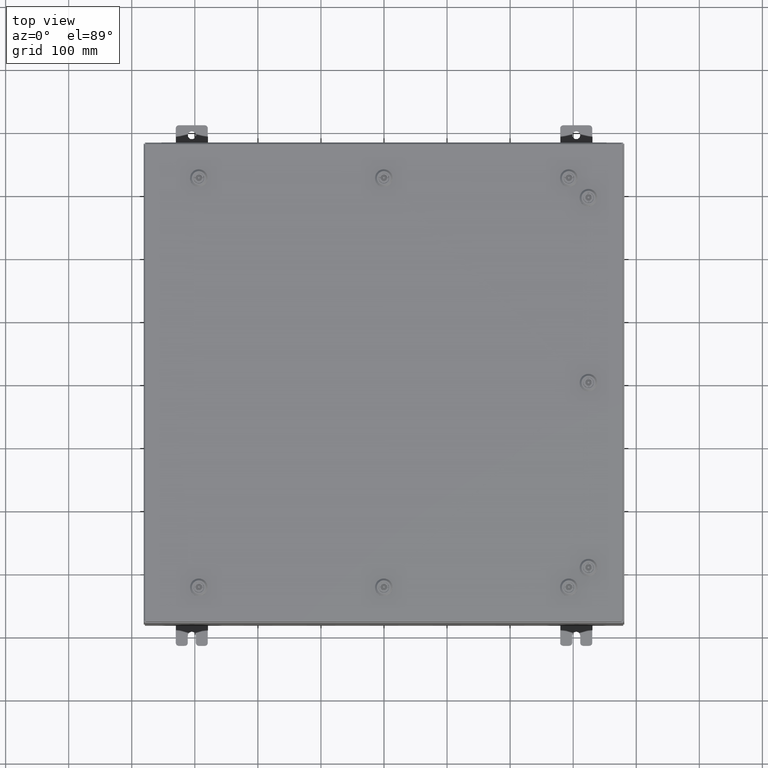
[diagram: clean part render]
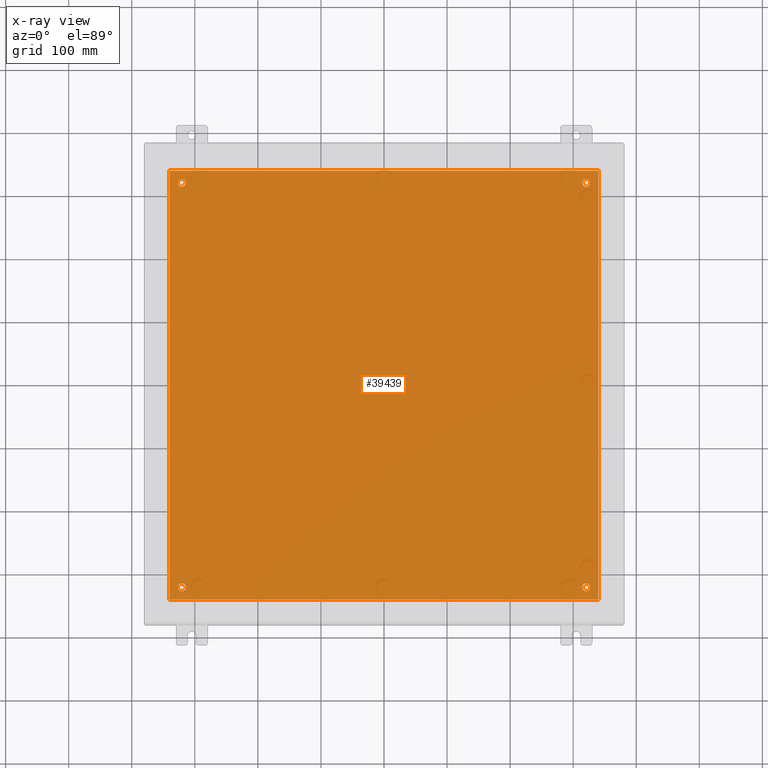
[diagram: x-ray — body ghosted, one internal face saturated and labeled with its STEP entity id]
A machine part, top view, then the same camera in x-ray: the body is ghosted and one INTERNAL B-rep face — a face not visible from any outside direction — is saturated and labeled: STEP entity #39439.
In plain terms, the highlighted planar face has unit normal (0, 0, -1).
Its self-contained STEP definition (entity closure, byte-faithful):
#556 = AXIS2_PLACEMENT_3D ( 'NONE', #42656, #12399, #47770 ) ;
#614 = EDGE_CURVE ( 'NONE', #28975, #15425, #2754, .T. ) ;
#1179 = CARTESIAN_POINT ( 'NONE',  ( 12.87500000000000500, 12.62500000000000000, -0.1039999999999999800 ) ) ;
#1596 = ORIENTED_EDGE ( 'NONE', *, *, #7466, .F. ) ;
#2722 = EDGE_CURVE ( 'NONE', #13219, #52647, #15459, .T. ) ;
#2754 = LINE ( 'NONE', #15965, #17884 ) ;
#2912 = FACE_BOUND ( 'NONE', #62347, .T. ) ;
#5115 = DIRECTION ( 'NONE',  ( -0.0000000000000000000, -0.0000000000000000000, 1.000000000000000000 ) ) ;
#6082 = ORIENTED_EDGE ( 'NONE', *, *, #52713, .T. ) ;
#6223 = DIRECTION ( 'NONE',  ( -1.000000000000000000, 0.0000000000000000000, -0.0000000000000000000 ) ) ;
#6502 = ORIENTED_EDGE ( 'NONE', *, *, #40808, .T. ) ;
#6526 = CARTESIAN_POINT ( 'NONE',  ( -12.62500000000000400, 12.62500000000000000, -0.1039999999999999800 ) ) ;
#6539 = VERTEX_POINT ( 'NONE', #37953 ) ;
#6574 = CARTESIAN_POINT ( 'NONE',  ( -13.50000000000000000, -13.38299999999999900, -0.1040000000000009100 ) ) ;
#7466 = EDGE_CURVE ( 'NONE', #15425, #18227, #52249, .T. ) ;
#7846 = DIRECTION ( 'NONE',  ( -1.000000000000000000, 0.0000000000000000000, 0.0000000000000000000 ) ) ;
#8530 = VERTEX_POINT ( 'NONE', #39403 ) ;
#8735 = VECTOR ( 'NONE', #54991, 39.37007874015748100 ) ;
#9261 = AXIS2_PLACEMENT_3D ( 'NONE', #17935, #15942, #7846 ) ;
#10068 = DIRECTION ( 'NONE',  ( -0.0000000000000000000, -0.0000000000000000000, 1.000000000000000000 ) ) ;
#10365 = ORIENTED_EDGE ( 'NONE', *, *, #2722, .T. ) ;
#11642 = DIRECTION ( 'NONE',  ( -1.000000000000000000, 0.0000000000000000000, 0.0000000000000000000 ) ) ;
#12032 = CIRCLE ( 'NONE', #64851, 0.2500000000000008900 ) ;
#12399 = DIRECTION ( 'NONE',  ( -0.0000000000000000000, -0.0000000000000000000, 1.000000000000000000 ) ) ;
#13219 = VERTEX_POINT ( 'NONE', #22142 ) ;
#13426 = CARTESIAN_POINT ( 'NONE',  ( -12.37500000000000400, 12.62500000000000000, -0.1039999999999999800 ) ) ;
#14337 = CARTESIAN_POINT ( 'NONE',  ( -13.38299999999999900, 13.38299999999999700, -0.1040000000000009100 ) ) ;
#14888 = LINE ( 'NONE', #6574, #40179 ) ;
#15081 = EDGE_LOOP ( 'NONE', ( #17874, #61141, #1596, #30209 ) ) ;
#15425 = VERTEX_POINT ( 'NONE', #49023 ) ;
#15459 = CIRCLE ( 'NONE', #9261, 0.2500000000000008900 ) ;
#15942 = DIRECTION ( 'NONE',  ( -0.0000000000000000000, -0.0000000000000000000, 1.000000000000000000 ) ) ;
#15965 = CARTESIAN_POINT ( 'NONE',  ( 13.38299999999999900, -13.38299999999999700, -0.1040000000000009100 ) ) ;
#16132 = VERTEX_POINT ( 'NONE', #19991 ) ;
#16443 = FACE_OUTER_BOUND ( 'NONE', #15081, .T. ) ;
#16723 = AXIS2_PLACEMENT_3D ( 'NONE', #52929, #22733, #58039 ) ;
#17874 = ORIENTED_EDGE ( 'NONE', *, *, #58915, .F. ) ;
#17884 = VECTOR ( 'NONE', #49230, 39.37007874015748100 ) ;
#17935 = CARTESIAN_POINT ( 'NONE',  ( 12.62500000000000400, -12.62500000000000000, -0.1039999999999999800 ) ) ;
#17992 = EDGE_LOOP ( 'NONE', ( #45876, #10365 ) ) ;
#18227 = VERTEX_POINT ( 'NONE', #49083 ) ;
#18413 = EDGE_LOOP ( 'NONE', ( #58402, #6502 ) ) ;
#19597 = DIRECTION ( 'NONE',  ( -0.0000000000000000000, -0.0000000000000000000, 1.000000000000000000 ) ) ;
#19767 = EDGE_CURVE ( 'NONE', #52647, #13219, #63461, .T. ) ;
#19946 = CARTESIAN_POINT ( 'NONE',  ( -12.62500000000000400, -12.62500000000000000, -0.1039999999999999800 ) ) ;
#19991 = CARTESIAN_POINT ( 'NONE',  ( -12.87500000000000500, -12.62500000000000000, -0.1039999999999999800 ) ) ;
#20319 = DIRECTION ( 'NONE',  ( -1.000000000000000000, -0.0000000000000000000, -0.0000000000000000000 ) ) ;
#22142 = CARTESIAN_POINT ( 'NONE',  ( 12.37500000000000400, -12.62500000000000000, -0.1039999999999999800 ) ) ;
#22279 = AXIS2_PLACEMENT_3D ( 'NONE', #50704, #36582, #6223 ) ;
#22645 = AXIS2_PLACEMENT_3D ( 'NONE', #40354, #10068, #45437 ) ;
#22733 = DIRECTION ( 'NONE',  ( -0.0000000000000000000, -0.0000000000000000000, 1.000000000000000000 ) ) ;
#25061 = DIRECTION ( 'NONE',  ( -1.000000000000000000, 0.0000000000000000000, 0.0000000000000000000 ) ) ;
#25408 = CARTESIAN_POINT ( 'NONE',  ( 13.50000000000000000, 13.38299999999999900, -0.1040000000000009100 ) ) ;
#26396 = EDGE_CURVE ( 'NONE', #18227, #45359, #62624, .T. ) ;
#27257 = DIRECTION ( 'NONE',  ( 1.000000000000000000, -0.0000000000000000000, -0.0000000000000000000 ) ) ;
#27423 = AXIS2_PLACEMENT_3D ( 'NONE', #6526, #41894, #11642 ) ;
#28975 = VERTEX_POINT ( 'NONE', #54257 ) ;
#29894 = FACE_BOUND ( 'NONE', #45488, .T. ) ;
#30209 = ORIENTED_EDGE ( 'NONE', *, *, #614, .F. ) ;
#31777 = CARTESIAN_POINT ( 'NONE',  ( 12.87500000000000500, -12.62500000000000000, -0.1039999999999999800 ) ) ;
#32727 = EDGE_CURVE ( 'NONE', #50508, #6539, #50428, .T. ) ;
#34909 = VERTEX_POINT ( 'NONE', #61984 ) ;
#35465 = CARTESIAN_POINT ( 'NONE',  ( -12.62500000000000400, 12.62500000000000000, -0.1039999999999999800 ) ) ;
#36582 = DIRECTION ( 'NONE',  ( 0.0000000000000000000, 0.0000000000000000000, -1.000000000000000000 ) ) ;
#36588 = EDGE_CURVE ( 'NONE', #6539, #50508, #47006, .T. ) ;
#37953 = CARTESIAN_POINT ( 'NONE',  ( 12.37500000000000400, 12.62500000000000000, -0.1039999999999999800 ) ) ;
#39403 = CARTESIAN_POINT ( 'NONE',  ( -12.87500000000000500, 12.62500000000000000, -0.1039999999999999800 ) ) ;
#39439 = ADVANCED_FACE ( 'NONE', ( #2912, #55141, #29894, #41662, #16443 ), #61789, .T. ) ;
#40179 = VECTOR ( 'NONE', #27257, 39.37007874015748100 ) ;
#40354 = CARTESIAN_POINT ( 'NONE',  ( 12.62500000000000400, -12.62500000000000000, -0.1039999999999999800 ) ) ;
#40525 = DIRECTION ( 'NONE',  ( -1.000000000000000000, 0.0000000000000000000, 0.0000000000000000000 ) ) ;
#40808 = EDGE_CURVE ( 'NONE', #8530, #48153, #49482, .T. ) ;
#41662 = FACE_BOUND ( 'NONE', #18413, .T. ) ;
#41894 = DIRECTION ( 'NONE',  ( -0.0000000000000000000, -0.0000000000000000000, 1.000000000000000000 ) ) ;
#42656 = CARTESIAN_POINT ( 'NONE',  ( -12.62500000000000400, -12.62500000000000000, -0.1039999999999999800 ) ) ;
#45359 = VERTEX_POINT ( 'NONE', #48850 ) ;
#45437 = DIRECTION ( 'NONE',  ( -1.000000000000000000, 0.0000000000000000000, 0.0000000000000000000 ) ) ;
#45488 = EDGE_LOOP ( 'NONE', ( #65603, #62269 ) ) ;
#45876 = ORIENTED_EDGE ( 'NONE', *, *, #19767, .T. ) ;
#46386 = AXIS2_PLACEMENT_3D ( 'NONE', #35465, #5115, #40525 ) ;
#47006 = CIRCLE ( 'NONE', #61722, 0.2500000000000008900 ) ;
#47021 = EDGE_CURVE ( 'NONE', #16132, #34909, #12032, .T. ) ;
#47770 = DIRECTION ( 'NONE',  ( -1.000000000000000000, 0.0000000000000000000, 0.0000000000000000000 ) ) ;
#48153 = VERTEX_POINT ( 'NONE', #13426 ) ;
#48850 = CARTESIAN_POINT ( 'NONE',  ( -13.38299999999999900, -13.38299999999999900, -0.1040000000000009100 ) ) ;
#49023 = CARTESIAN_POINT ( 'NONE',  ( 13.38299999999999900, 13.38299999999999700, -0.1040000000000009100 ) ) ;
#49083 = CARTESIAN_POINT ( 'NONE',  ( -13.38299999999999900, 13.38299999999999700, -0.1040000000000009100 ) ) ;
#49230 = DIRECTION ( 'NONE',  ( 0.0000000000000000000, 1.000000000000000000, 0.0000000000000000000 ) ) ;
#49482 = CIRCLE ( 'NONE', #27423, 0.2500000000000008900 ) ;
#49817 = CARTESIAN_POINT ( 'NONE',  ( 12.62500000000000400, 12.62500000000000000, -0.1039999999999999800 ) ) ;
#50428 = CIRCLE ( 'NONE', #16723, 0.2500000000000008900 ) ;
#50508 = VERTEX_POINT ( 'NONE', #1179 ) ;
#50679 = VECTOR ( 'NONE', #20319, 39.37007874015748100 ) ;
#50704 = CARTESIAN_POINT ( 'NONE',  ( 0.0000000000000000000, 0.0000000000000000000, -0.1039999999999999800 ) ) ;
#52249 = LINE ( 'NONE', #25408, #50679 ) ;
#52647 = VERTEX_POINT ( 'NONE', #31777 ) ;
#52713 = EDGE_CURVE ( 'NONE', #34909, #16132, #64350, .T. ) ;
#52929 = CARTESIAN_POINT ( 'NONE',  ( 12.62500000000000400, 12.62500000000000000, -0.1039999999999999800 ) ) ;
#54257 = CARTESIAN_POINT ( 'NONE',  ( 13.38299999999999900, -13.38299999999999700, -0.1040000000000009100 ) ) ;
#54429 = EDGE_CURVE ( 'NONE', #48153, #8530, #54782, .T. ) ;
#54782 = CIRCLE ( 'NONE', #46386, 0.2500000000000008900 ) ;
#54898 = DIRECTION ( 'NONE',  ( -1.000000000000000000, 0.0000000000000000000, 0.0000000000000000000 ) ) ;
#54991 = DIRECTION ( 'NONE',  ( 0.0000000000000000000, -1.000000000000000000, 0.0000000000000000000 ) ) ;
#55141 = FACE_BOUND ( 'NONE', #17992, .T. ) ;
#55250 = DIRECTION ( 'NONE',  ( -0.0000000000000000000, -0.0000000000000000000, 1.000000000000000000 ) ) ;
#55659 = ORIENTED_EDGE ( 'NONE', *, *, #47021, .T. ) ;
#58039 = DIRECTION ( 'NONE',  ( -1.000000000000000000, 0.0000000000000000000, 0.0000000000000000000 ) ) ;
#58402 = ORIENTED_EDGE ( 'NONE', *, *, #54429, .T. ) ;
#58915 = EDGE_CURVE ( 'NONE', #45359, #28975, #14888, .T. ) ;
#61141 = ORIENTED_EDGE ( 'NONE', *, *, #26396, .F. ) ;
#61722 = AXIS2_PLACEMENT_3D ( 'NONE', #49817, #19597, #54898 ) ;
#61789 = PLANE ( 'NONE',  #22279 ) ;
#61984 = CARTESIAN_POINT ( 'NONE',  ( -12.37500000000000400, -12.62500000000000000, -0.1039999999999999800 ) ) ;
#62269 = ORIENTED_EDGE ( 'NONE', *, *, #36588, .T. ) ;
#62347 = EDGE_LOOP ( 'NONE', ( #6082, #55659 ) ) ;
#62624 = LINE ( 'NONE', #14337, #8735 ) ;
#63461 = CIRCLE ( 'NONE', #22645, 0.2500000000000008900 ) ;
#64350 = CIRCLE ( 'NONE', #556, 0.2500000000000008900 ) ;
#64851 = AXIS2_PLACEMENT_3D ( 'NONE', #19946, #55250, #25061 ) ;
#65603 = ORIENTED_EDGE ( 'NONE', *, *, #32727, .T. ) ;